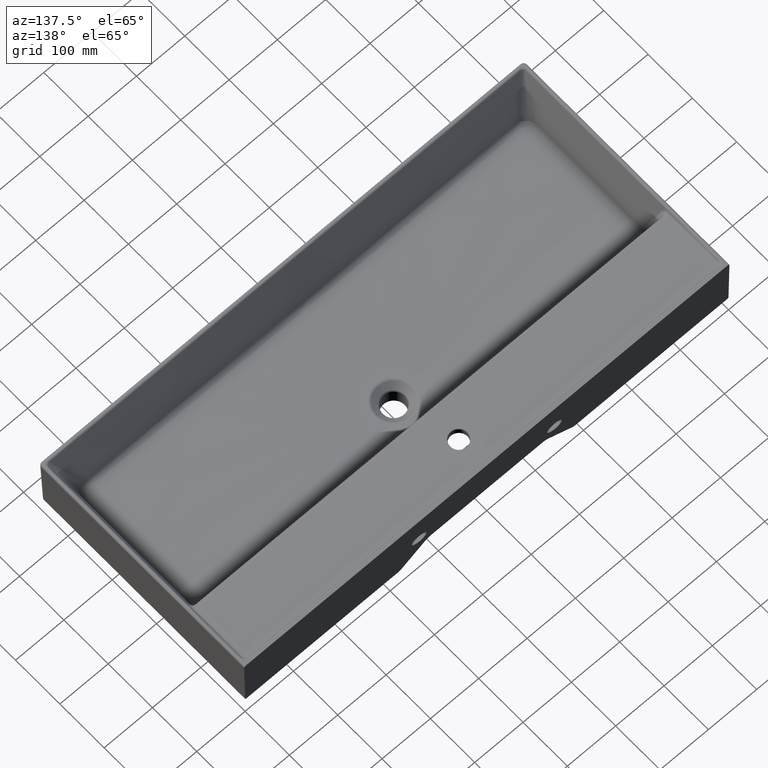
[diagram: clean part render]
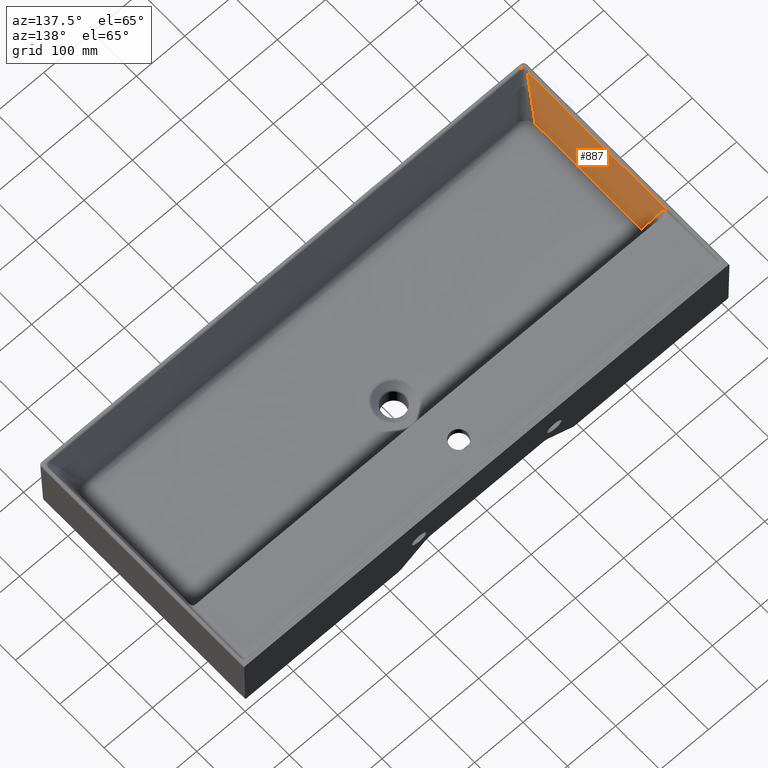
[diagram: same view with one face highlighted and labeled with its STEP entity id]
A machine part, auxiliary view. The second image highlights one B-rep face of the part: STEP entity #887.
In plain terms, the highlighted planar face has unit normal (0.9397, 0, 0.342).
Its self-contained STEP definition (entity closure, byte-faithful):
#425=PLANE('',#5708);
#450=(
BOUNDED_CURVE()
B_SPLINE_CURVE(3,(#7993,#7994,#7995,#7996,#7997,#7998,#7999,#8000,#8001,
#8002,#8003,#8004,#8005,#8006,#8007,#8008),.UNSPECIFIED.,.F.,.F.)
B_SPLINE_CURVE_WITH_KNOTS((4,3,3,3,3,4),(0.,0.55473971057994,0.606455386694711,
0.868818462231571,0.895054769785256,1.),.UNSPECIFIED.)
CURVE()
GEOMETRIC_REPRESENTATION_ITEM()
RATIONAL_B_SPLINE_CURVE((1.,1.,1.,1.,1.,1.,1.,1.,1.,1.,1.,1.,1.,1.,1.,1.))
REPRESENTATION_ITEM('')
);
#570=LINE('',#9594,#706);
#571=LINE('',#9596,#707);
#706=VECTOR('',#6305,1.);
#707=VECTOR('',#6306,1.);
#887=ADVANCED_FACE('',(#1246),#425,.T.);
#1246=FACE_OUTER_BOUND('',#1631,.T.);
#1631=EDGE_LOOP('',(#2559,#2560,#2561,#2562,#2563,#2564));
#2559=ORIENTED_EDGE('',*,*,#4704,.T.);
#2560=ORIENTED_EDGE('',*,*,#4478,.T.);
#2561=ORIENTED_EDGE('',*,*,#4705,.T.);
#2562=ORIENTED_EDGE('',*,*,#4706,.T.);
#2563=ORIENTED_EDGE('',*,*,#4707,.T.);
#2564=ORIENTED_EDGE('',*,*,#4708,.T.);
#3988=VERTEX_POINT('',#7983);
#3989=VERTEX_POINT('',#7992);
#4197=VERTEX_POINT('',#9584);
#4198=VERTEX_POINT('',#9593);
#4199=VERTEX_POINT('',#9595);
#4200=VERTEX_POINT('',#9597);
#4478=EDGE_CURVE('',#3988,#3989,#450,.T.);
#4704=EDGE_CURVE('',#4197,#3988,#5413,.T.);
#4705=EDGE_CURVE('',#3989,#4198,#5414,.T.);
#4706=EDGE_CURVE('',#4198,#4199,#570,.T.);
#4707=EDGE_CURVE('',#4199,#4200,#571,.T.);
#4708=EDGE_CURVE('',#4200,#4197,#5415,.T.);
#5413=B_SPLINE_CURVE_WITH_KNOTS('',3,(#9580,#9581,#9582,#9583),
 .UNSPECIFIED.,.F.,.F.,(4,4),(0.,1.),.UNSPECIFIED.);
#5414=B_SPLINE_CURVE_WITH_KNOTS('',3,(#9585,#9586,#9587,#9588,#9589,#9590,
#9591,#9592),.UNSPECIFIED.,.F.,.F.,(4,2,2,4),(0.,0.25,0.5,1.),
 .UNSPECIFIED.);
#5415=B_SPLINE_CURVE_WITH_KNOTS('',3,(#9598,#9599,#9600,#9601),
 .UNSPECIFIED.,.F.,.F.,(4,4),(0.,1.),.UNSPECIFIED.);
#5708=AXIS2_PLACEMENT_3D('',#9602,#6307,#6308);
#6305=DIRECTION('',(-0.00635202830895263,0.99982752389372,0.0174520543465839));
#6306=DIRECTION('',(0.,-1.,0.));
#6307=DIRECTION('',(0.939692620785908,0.,0.342020143325669));
#6308=DIRECTION('',(-0.342020143325669,0.,0.939692620785909));
#7983=CARTESIAN_POINT('',(-466.543921313753,-160.431091576967,-62.6486776648021));
#7992=CARTESIAN_POINT('',(-490.646397518967,-139.276548495228,3.5723314619674));
#7993=CARTESIAN_POINT('',(-401.847012141771,-217.215031147367,-240.401974723327));
#7994=CARTESIAN_POINT('',(-421.152658701471,-200.270625585435,-187.360146732579));
#7995=CARTESIAN_POINT('',(-440.458305261172,-183.326220023503,-134.31831874183));
#7996=CARTESIAN_POINT('',(-459.763951820873,-166.381814461571,-81.2764907510809));
#7997=CARTESIAN_POINT('',(-461.563723039025,-164.8021702189,-76.331659969024));
#7998=CARTESIAN_POINT('',(-463.363494257177,-163.22252597623,-71.3868291869672));
#7999=CARTESIAN_POINT('',(-465.163265475329,-161.64288173356,-66.4419984049104));
#8000=CARTESIAN_POINT('',(-474.293833758128,-153.629057823739,-41.35596822113));
#8001=CARTESIAN_POINT('',(-483.424402040928,-145.615233913918,-16.2699380373497));
#8002=CARTESIAN_POINT('',(-492.554970323727,-137.601410004097,8.8160921464307));
#8003=CARTESIAN_POINT('',(-493.468027152007,-136.800027613115,11.3246951648087));
#8004=CARTESIAN_POINT('',(-494.381083980287,-135.998645222133,13.8332981831866));
#8005=CARTESIAN_POINT('',(-495.294140808567,-135.197262831151,16.3419012015646));
#8006=CARTESIAN_POINT('',(-498.946368121686,-131.991733267223,26.3763132750768));
#8007=CARTESIAN_POINT('',(-502.598595434806,-128.786203703295,36.4107253485889));
#8008=CARTESIAN_POINT('',(-506.250822747925,-125.580674139367,46.445137422101));
#9580=CARTESIAN_POINT('',(-467.000538149382,-400.706522456907,-61.3941332195661));
#9581=CARTESIAN_POINT('',(-466.604312434335,-320.618676447893,-62.4827544246671));
#9582=CARTESIAN_POINT('',(-466.432773983969,-240.527180230621,-62.9540524436159));
#9583=CARTESIAN_POINT('',(-466.543921313752,-160.431091576967,-62.6486776648022));
#9584=CARTESIAN_POINT('',(-467.000538400876,-400.706521237444,-61.3941325285935));
#9585=CARTESIAN_POINT('',(-490.646397518967,-139.276548495229,3.5723314619676));
#9586=CARTESIAN_POINT('',(-491.063408563635,-138.684038142027,4.71805989085441));
#9587=CARTESIAN_POINT('',(-491.491170852935,-138.049933132939,5.893327121602));
#9588=CARTESIAN_POINT('',(-492.241680097334,-136.444415505721,7.95533432367857));
#9589=CARTESIAN_POINT('',(-492.576248970059,-135.468802619762,8.87455474674472));
#9590=CARTESIAN_POINT('',(-493.398272889457,-132.163326468743,11.1330469035408));
#9591=CARTESIAN_POINT('',(-493.702840318409,-129.488256841981,11.9698390372893));
#9592=CARTESIAN_POINT('',(-493.720306853712,-126.738973952613,12.0178279486292));
#9593=CARTESIAN_POINT('',(-493.720306853712,-126.738973952613,12.0178279486293));
#9594=CARTESIAN_POINT('',(-494.416791453418,-17.1102949096278,13.9314036593193));
#9595=CARTESIAN_POINT('',(-493.847788383566,-106.673014523999,12.3680805733027));
#9596=CARTESIAN_POINT('',(-493.847788383567,0.,12.3680805733027));
#9597=CARTESIAN_POINT('',(-493.847788426025,-448.108741063419,12.3680806899559));
#9598=CARTESIAN_POINT('',(-493.847788383567,-448.108741268705,12.3680805733028));
#9599=CARTESIAN_POINT('',(-484.594698205426,-431.74865982919,-13.0545757513162));
#9600=CARTESIAN_POINT('',(-475.645614794031,-415.947920225257,-37.6419803489393));
#9601=CARTESIAN_POINT('',(-467.000538149382,-400.706522456906,-61.3941332195665));
#9602=CARTESIAN_POINT('',(-494.805728713871,0.,15.));